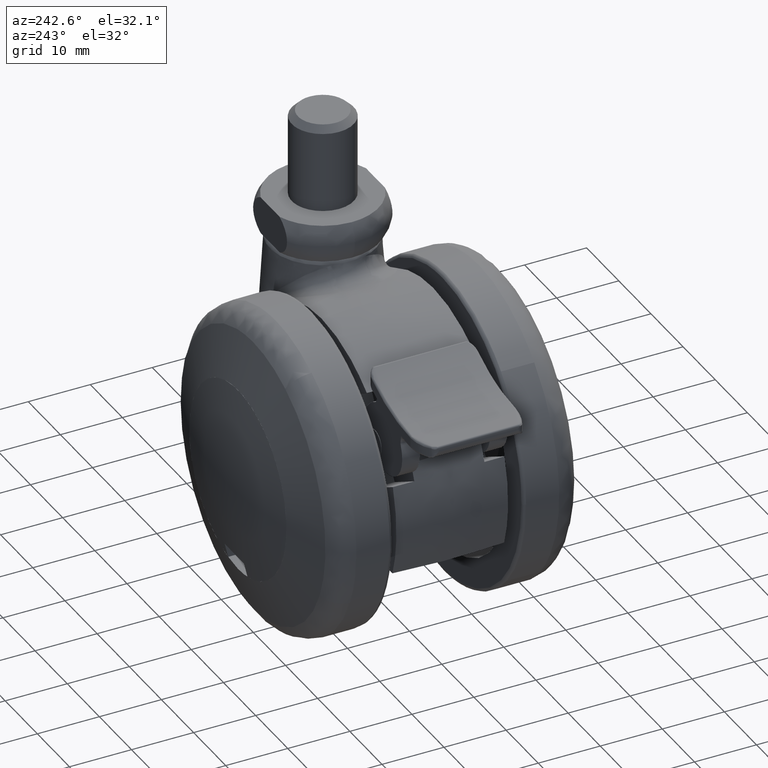
[diagram: clean part render]
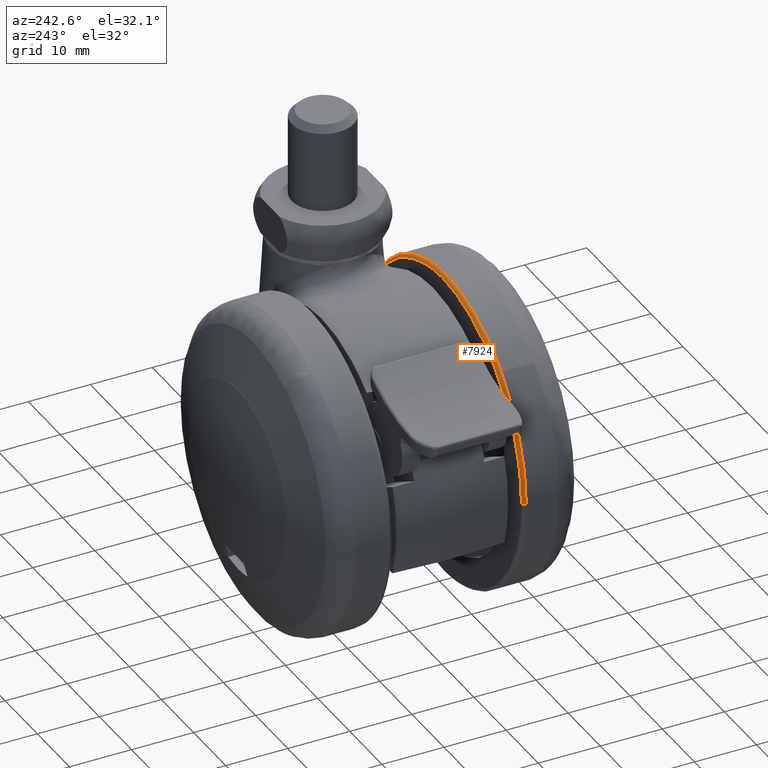
[diagram: same view with one face highlighted and labeled with its STEP entity id]
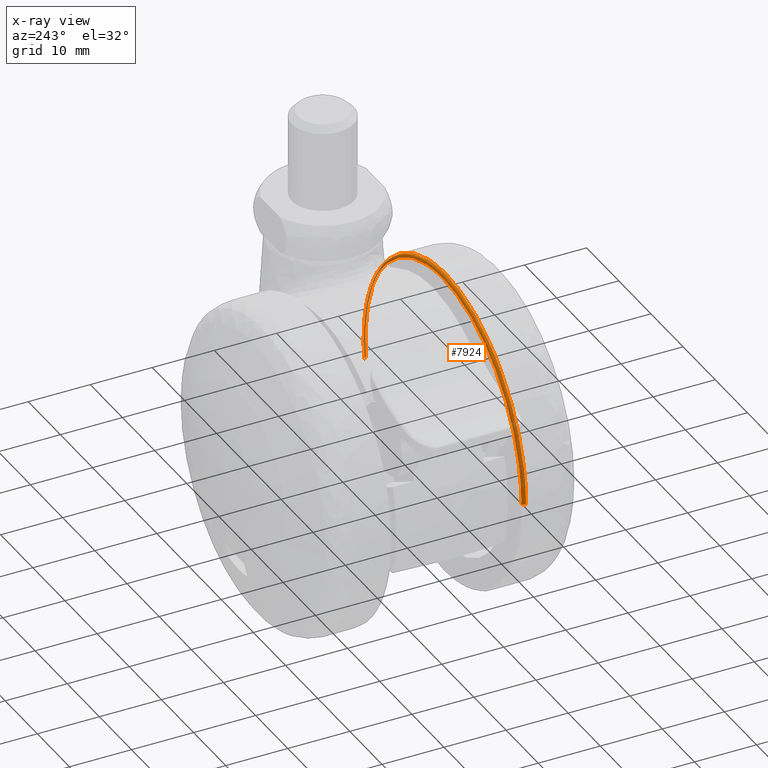
[diagram: x-ray of the same camera — body ghosted, the highlighted face saturated]
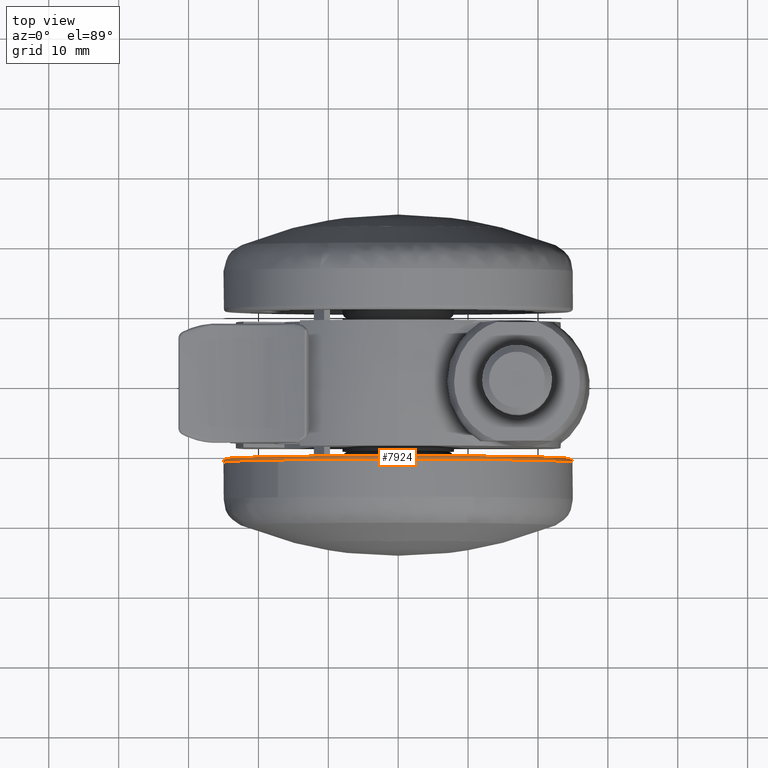
[diagram: same view with one face highlighted and labeled with its STEP entity id]
A machine part, auxiliary view. The second image highlights one B-rep face of the part: STEP entity #7924.
The next image is the same camera in x-ray: the body ghosted, the highlighted face saturated — about 13% of this face is hidden behind the body in this view.
A second angle (top view) of the same face is appended — the face is thin or edge-on in the first view.
In plain terms, the highlighted face is a freeform B-spline surface patch.
Its self-contained STEP definition (entity closure, byte-faithful):
#7339=CARTESIAN_POINT('',(24.832790969626949,-10.999999999482810,-2.886605733177664));
#7340=VERTEX_POINT('',#7339);
#7354=CARTESIAN_POINT('',(0.0,-11.0,25.0));
#7355=VERTEX_POINT('',#7354);
#7356=CARTESIAN_POINT('',(24.832790969626952,-10.999999999482805,-2.886605733177664));
#7357=CARTESIAN_POINT('',(25.0,-11.000000000000002,-1.448145727447749));
#7358=CARTESIAN_POINT('',(25.0,-11.0,0.0));
#7359=CARTESIAN_POINT('',(25.000000000000004,-11.0,25.000000000000004));
#7360=CARTESIAN_POINT('',(0.0,-11.0,25.0));
#7368=(BOUNDED_CURVE()B_SPLINE_CURVE(2,(#7356,#7357,#7358,#7359,#7360),.UNSPECIFIED.,.F.,.U.)B_SPLINE_CURVE_WITH_KNOTS((3,2,3),(0.229999999999989,0.250000000000000,0.500000000000000),.UNSPECIFIED.)CURVE()GEOMETRIC_REPRESENTATION_ITEM()RATIONAL_B_SPLINE_CURVE((0.956886118190638,0.976568542494911,1.0,0.707106781186547,1.0))REPRESENTATION_ITEM(''));
#7369=EDGE_CURVE('',#7340,#7355,#7368,.T.);
#7371=CARTESIAN_POINT('',(-17.208864065613980,-10.999999999854440,18.134359585362230));
#7372=VERTEX_POINT('',#7371);
#7373=CARTESIAN_POINT('',(0.0,-11.0,25.0));
#7374=CARTESIAN_POINT('',(-9.973988127219510,-11.0,24.999999999999996));
#7375=CARTESIAN_POINT('',(-17.208864065613984,-10.999999999854442,18.134359585362233));
#7383=(BOUNDED_CURVE()B_SPLINE_CURVE(2,(#7373,#7374,#7375),.UNSPECIFIED.,.F.,.U.)B_SPLINE_CURVE_WITH_KNOTS((3,3),(0.500000000000000,0.621049521220982),.UNSPECIFIED.)CURVE()GEOMETRIC_REPRESENTATION_ITEM()RATIONAL_B_SPLINE_CURVE((1.0,0.858181664375037,0.853699661772140))REPRESENTATION_ITEM(''));
#7384=EDGE_CURVE('',#7355,#7372,#7383,.T.);
#7486=CARTESIAN_POINT('',(-25.0,-10.999999999470010,0.0));
#7487=VERTEX_POINT('',#7486);
#7488=CARTESIAN_POINT('',(-17.208864065613984,-10.999999999854442,18.134359585362233));
#7489=CARTESIAN_POINT('',(-24.999999999999950,-10.999999999697710,10.740848182742793));
#7490=CARTESIAN_POINT('',(-25.0,-10.999999999470012,0.0));
#7498=(BOUNDED_CURVE()B_SPLINE_CURVE(2,(#7488,#7489,#7490),.UNSPECIFIED.,.F.,.U.)B_SPLINE_CURVE_WITH_KNOTS((3,3),(0.621049521220981,0.749999999999999),.UNSPECIFIED.)CURVE()GEOMETRIC_REPRESENTATION_ITEM()RATIONAL_B_SPLINE_CURVE((0.853699661772140,0.848925116811509,0.999999999999998))REPRESENTATION_ITEM(''));
#7499=EDGE_CURVE('',#7372,#7487,#7498,.T.);
#7830=CARTESIAN_POINT('',(24.301691230037079,-10.501203885790764,-2.824867021600565));
#7831=CARTESIAN_POINT('',(24.465323834557914,-10.501203885790765,-1.417172783314270));
#7832=CARTESIAN_POINT('',(24.465323834557918,-10.501203885790762,-4.494059E-015));
#7833=CARTESIAN_POINT('',(24.465323834557914,-10.501203885790765,24.465323834557896));
#7834=CARTESIAN_POINT('',(5.992078E-015,-10.501203885790762,24.465323834557918));
#7835=CARTESIAN_POINT('',(-24.465323834557896,-10.501203885790765,24.465323834557914));
#7836=CARTESIAN_POINT('',(-24.465323834557918,-10.501203885790762,7.490098E-015));
#7837=CARTESIAN_POINT('',(24.871401076590566,-10.461331134797113,-2.891090995157637));
#7838=CARTESIAN_POINT('',(25.038869755939704,-10.461331134797113,-1.450395873891762));
#7839=CARTESIAN_POINT('',(25.038869755939693,-10.461331134797110,-4.599414E-015));
#7840=CARTESIAN_POINT('',(25.038869755939722,-10.461331134797113,25.038869755939697));
#7841=CARTESIAN_POINT('',(6.132552E-015,-10.461331134797110,25.038869755939693));
#7842=CARTESIAN_POINT('',(-25.038869755939697,-10.461331134797113,25.038869755939722));
#7843=CARTESIAN_POINT('',(-25.038869755939693,-10.461331134797110,7.665690E-015));
#7844=CARTESIAN_POINT('',(24.831582583675349,-11.034862148969223,-2.886462430568394));
#7845=CARTESIAN_POINT('',(24.998783149844932,-11.034862148969225,-1.448073826265616));
#7846=CARTESIAN_POINT('',(24.998783149844940,-11.034862148969221,-4.592050E-015));
#7847=CARTESIAN_POINT('',(24.998783149844950,-11.034862148969228,24.998783149844936));
#7848=CARTESIAN_POINT('',(6.122734E-015,-11.034862148969221,24.998783149844940));
#7849=CARTESIAN_POINT('',(-24.998783149844936,-11.034862148969228,24.998783149844950));
#7850=CARTESIAN_POINT('',(-24.998783149844940,-11.034862148969221,7.653417E-015));
#7858=(BOUNDED_SURFACE()B_SPLINE_SURFACE(2,2,((#7830,#7837,#7844),(#7831,#7838,#7845),(#7832,#7839,#7846),(#7833,#7840,#7847),(#7834,#7841,#7848),(#7835,#7842,#7849),(#7836,#7843,#7850)),.UNSPECIFIED.,.F.,.F.,.U.)B_SPLINE_SURFACE_WITH_KNOTS((3,2,2,3),(3,3),(0.0,3.313544047471860,44.732884141430958,86.152224235390065),(0.0,0.911186293939371),.UNSPECIFIED.)GEOMETRIC_REPRESENTATION_ITEM()RATIONAL_B_SPLINE_SURFACE(((0.876476487965608,0.573569566687791,0.871620889741960),(0.894504932318384,0.585367449640108,0.889549458189818),(0.915967362172989,0.599412545841544,0.910892988179215),(0.647686733138075,0.423848675892848,0.644098608876801),(0.915967362172989,0.599412545841544,0.910892988179215),(0.647686733138075,0.423848675892848,0.644098608876801),(0.915967362172989,0.599412545841544,0.910892988179215)))REPRESENTATION_ITEM('')SURFACE());
#7859=CARTESIAN_POINT('',(24.336135152805600,-10.500000000000000,-2.828873618836702));
#7860=VERTEX_POINT('',#7859);
#7861=CARTESIAN_POINT('',(0.0,-10.500000000000000,24.500000000000000));
#7862=VERTEX_POINT('',#7861);
#7863=CARTESIAN_POINT('',(24.336135152805603,-10.500000000000005,-2.828873618836703));
#7864=CARTESIAN_POINT('',(24.500000000000004,-10.499999999999996,-1.419182812922426));
#7865=CARTESIAN_POINT('',(24.500000000000000,-10.500000000000000,0.0));
#7866=CARTESIAN_POINT('',(24.499999999999993,-10.500000000000000,24.499999999999993));
#7867=CARTESIAN_POINT('',(0.0,-10.500000000000000,24.500000000000000));
#7875=(BOUNDED_CURVE()B_SPLINE_CURVE(2,(#7863,#7864,#7865,#7866,#7867),.UNSPECIFIED.,.F.,.U.)B_SPLINE_CURVE_WITH_KNOTS((3,2,3),(0.229999999999664,0.250000000000000,0.500000000000000),.UNSPECIFIED.)CURVE()GEOMETRIC_REPRESENTATION_ITEM()RATIONAL_B_SPLINE_CURVE((0.956886118189998,0.976568542494530,1.0,0.707106781186547,1.0))REPRESENTATION_ITEM(''));
#7876=EDGE_CURVE('',#7860,#7862,#7875,.T.);
#7877=ORIENTED_EDGE('',*,*,#7876,.T.);
#7878=CARTESIAN_POINT('',(-24.500000000183661,-10.500000000000000,0.0));
#7879=VERTEX_POINT('',#7878);
#7880=CARTESIAN_POINT('',(0.0,-10.500000000000000,24.500000000000000));
#7881=CARTESIAN_POINT('',(-24.499999999999879,-10.500000000000000,24.499999999999989));
#7882=CARTESIAN_POINT('',(-24.500000000183661,-10.500000000000002,0.0));
#7890=(BOUNDED_CURVE()B_SPLINE_CURVE(2,(#7880,#7881,#7882),.UNSPECIFIED.,.F.,.U.)B_SPLINE_CURVE_WITH_KNOTS((3,3),(0.500000000000000,0.749999999999999),.UNSPECIFIED.)CURVE()GEOMETRIC_REPRESENTATION_ITEM()RATIONAL_B_SPLINE_CURVE((1.0,0.707106781186548,0.999999999999998))REPRESENTATION_ITEM(''));
#7891=EDGE_CURVE('',#7862,#7879,#7890,.T.);
#7892=ORIENTED_EDGE('',*,*,#7891,.T.);
#7893=CARTESIAN_POINT('',(-24.500000000183661,-10.500000000000002,0.0));
#7894=CARTESIAN_POINT('',(-24.999999998940012,-10.500000000367326,0.0));
#7895=CARTESIAN_POINT('',(-25.0,-10.999999999470008,0.0));
#7903=(BOUNDED_CURVE()B_SPLINE_CURVE(2,(#7893,#7894,#7895),.UNSPECIFIED.,.F.,.U.)B_SPLINE_CURVE_WITH_KNOTS((3,3),(-1.736413120311833,-0.276558720197934),.UNSPECIFIED.)CURVE()GEOMETRIC_REPRESENTATION_ITEM()RATIONAL_B_SPLINE_CURVE((0.888510408789768,0.626638727763066,0.883897566369383))REPRESENTATION_ITEM(''));
#7904=EDGE_CURVE('',#7879,#7487,#7903,.T.);
#7905=ORIENTED_EDGE('',*,*,#7904,.T.);
#7906=ORIENTED_EDGE('',*,*,#7499,.F.);
#7907=ORIENTED_EDGE('',*,*,#7384,.F.);
#7908=ORIENTED_EDGE('',*,*,#7369,.F.);
#7909=CARTESIAN_POINT('',(24.336135152805603,-10.500000000000000,-2.828873618836702));
#7910=CARTESIAN_POINT('',(24.832790968599568,-10.500000005182482,-2.886605733057415));
#7911=CARTESIAN_POINT('',(24.832790969626949,-10.999999999482805,-2.886605733177665));
#7919=(BOUNDED_CURVE()B_SPLINE_CURVE(2,(#7909,#7910,#7911),.UNSPECIFIED.,.F.,.U.)B_SPLINE_CURVE_WITH_KNOTS((3,3),(-1.736413110344815,-0.276558720145225),.UNSPECIFIED.)CURVE()GEOMETRIC_REPRESENTATION_ITEM()RATIONAL_B_SPLINE_CURVE((0.850203272617196,0.599621901388771,0.845789311179146))REPRESENTATION_ITEM(''));
#7920=EDGE_CURVE('',#7860,#7340,#7919,.T.);
#7921=ORIENTED_EDGE('',*,*,#7920,.F.);
#7922=EDGE_LOOP('',(#7877,#7892,#7905,#7906,#7907,#7908,#7921));
#7923=FACE_OUTER_BOUND('',#7922,.T.);
#7924=ADVANCED_FACE('',(#7923),#7858,.T.);